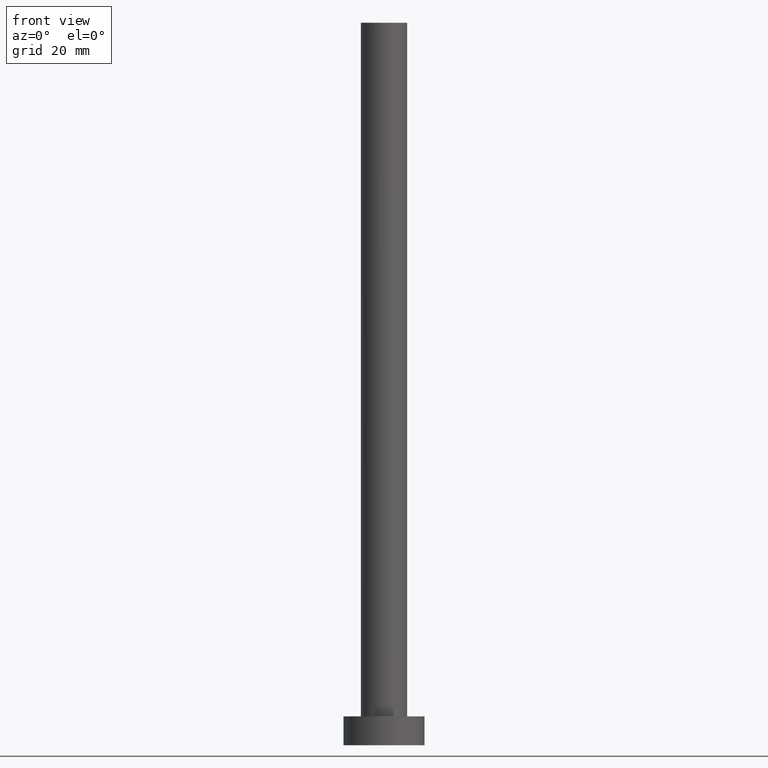
[diagram: clean part render]
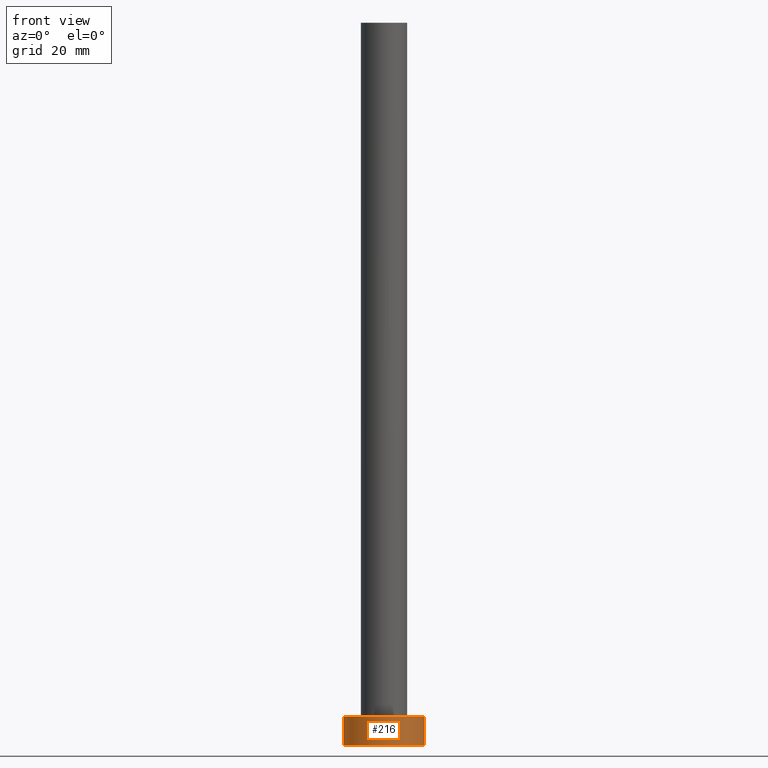
[diagram: same view with one face highlighted and labeled with its STEP entity id]
A machine part, front view. The second image highlights one B-rep face of the part: STEP entity #216.
In plain terms, the highlighted cylindrical surface (partial cylindrical patch) has radius 7 mm, axis along (-0, -0, -1).
Its self-contained STEP definition (entity closure, byte-faithful):
#13 = CARTESIAN_POINT ( 'NONE',  ( -7.000000000000000000, 0.000000000000000000, 0.000000000000000000 ) ) ;
#29 = VERTEX_POINT ( 'NONE', #199 ) ;
#30 = AXIS2_PLACEMENT_3D ( 'NONE', #169, #33, #225 ) ;
#33 = DIRECTION ( 'NONE',  ( 0.000000000000000000, 0.000000000000000000, 1.000000000000000000 ) ) ;
#41 = ORIENTED_EDGE ( 'NONE', *, *, #209, .F. ) ;
#59 = AXIS2_PLACEMENT_3D ( 'NONE', #247, #68, #131 ) ;
#67 = CARTESIAN_POINT ( 'NONE',  ( 7.000000000000000000, 8.572527594031473190E-16, 5.000000000000000000 ) ) ;
#68 = DIRECTION ( 'NONE',  ( 0.000000000000000000, 0.000000000000000000, 1.000000000000000000 ) ) ;
#94 = LINE ( 'NONE', #226, #249 ) ;
#97 = DIRECTION ( 'NONE',  ( -0.000000000000000000, -0.000000000000000000, -1.000000000000000000 ) ) ;
#101 = ORIENTED_EDGE ( 'NONE', *, *, #160, .T. ) ;
#110 = CIRCLE ( 'NONE', #59, 7.000000000000000000 ) ;
#121 = AXIS2_PLACEMENT_3D ( 'NONE', #205, #207, #250 ) ;
#131 = DIRECTION ( 'NONE',  ( 1.000000000000000000, 0.000000000000000000, 0.000000000000000000 ) ) ;
#152 = FACE_OUTER_BOUND ( 'NONE', #241, .T. ) ;
#154 = CARTESIAN_POINT ( 'NONE',  ( 7.000000000000000000, 8.572527594031473190E-16, 5.000000000000000000 ) ) ;
#157 = VERTEX_POINT ( 'NONE', #67 ) ;
#160 = EDGE_CURVE ( 'NONE', #177, #194, #94, .T. ) ;
#169 = CARTESIAN_POINT ( 'NONE',  ( 0.000000000000000000, 0.000000000000000000, 5.000000000000000000 ) ) ;
#170 = CYLINDRICAL_SURFACE ( 'NONE', #121, 7.000000000000000000 ) ;
#176 = ORIENTED_EDGE ( 'NONE', *, *, #198, .F. ) ;
#177 = VERTEX_POINT ( 'NONE', #231 ) ;
#189 = DIRECTION ( 'NONE',  ( -0.000000000000000000, -0.000000000000000000, -1.000000000000000000 ) ) ;
#194 = VERTEX_POINT ( 'NONE', #13 ) ;
#198 = EDGE_CURVE ( 'NONE', #177, #157, #251, .T. ) ;
#199 = CARTESIAN_POINT ( 'NONE',  ( 7.000000000000000000, 8.572527594031473190E-16, 0.000000000000000000 ) ) ;
#205 = CARTESIAN_POINT ( 'NONE',  ( 0.000000000000000000, 0.000000000000000000, 5.000000000000000000 ) ) ;
#207 = DIRECTION ( 'NONE',  ( -0.000000000000000000, -0.000000000000000000, -1.000000000000000000 ) ) ;
#209 = EDGE_CURVE ( 'NONE', #157, #29, #245, .T. ) ;
#216 = ADVANCED_FACE ( 'NONE', ( #152 ), #170, .T. ) ;
#218 = VECTOR ( 'NONE', #97, 1000.000000000000000 ) ;
#225 = DIRECTION ( 'NONE',  ( 1.000000000000000000, 0.000000000000000000, 0.000000000000000000 ) ) ;
#226 = CARTESIAN_POINT ( 'NONE',  ( -7.000000000000000000, 0.000000000000000000, 5.000000000000000000 ) ) ;
#231 = CARTESIAN_POINT ( 'NONE',  ( -7.000000000000000000, 0.000000000000000000, 5.000000000000000000 ) ) ;
#236 = EDGE_CURVE ( 'NONE', #194, #29, #110, .T. ) ;
#237 = ORIENTED_EDGE ( 'NONE', *, *, #236, .T. ) ;
#241 = EDGE_LOOP ( 'NONE', ( #41, #176, #101, #237 ) ) ;
#245 = LINE ( 'NONE', #154, #218 ) ;
#247 = CARTESIAN_POINT ( 'NONE',  ( 0.000000000000000000, 0.000000000000000000, 0.000000000000000000 ) ) ;
#249 = VECTOR ( 'NONE', #189, 1000.000000000000000 ) ;
#250 = DIRECTION ( 'NONE',  ( -1.000000000000000000, 0.000000000000000000, 0.000000000000000000 ) ) ;
#251 = CIRCLE ( 'NONE', #30, 7.000000000000000000 ) ;